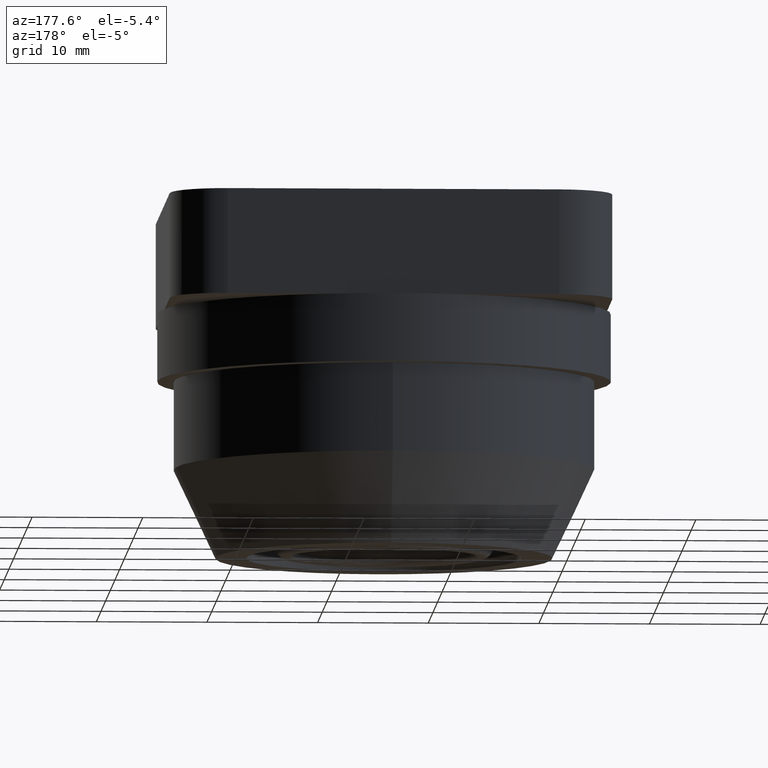
[diagram: clean part render]
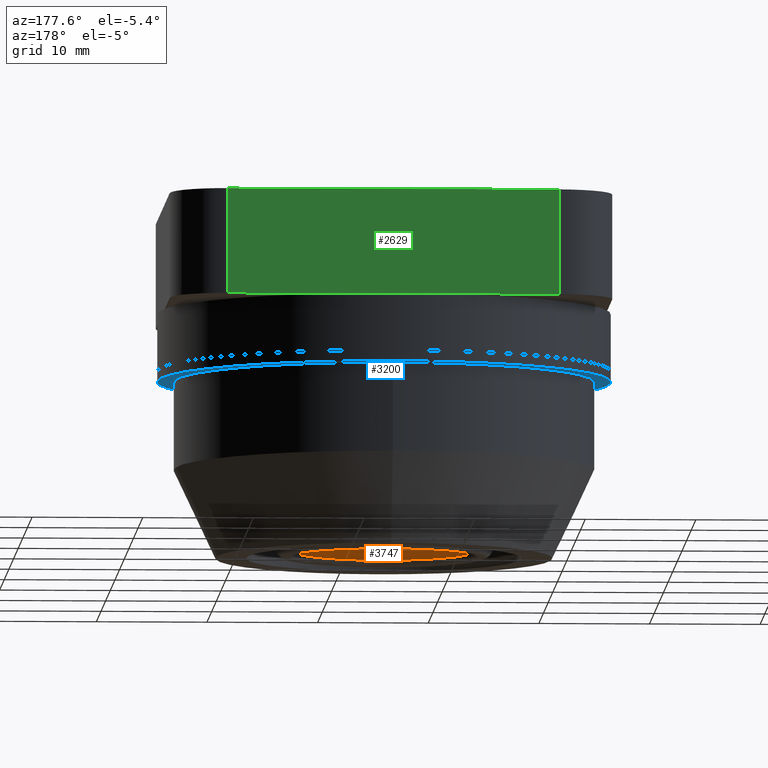
[diagram: same view with three faces highlighted in distinct colors, each labeled with its STEP entity id]
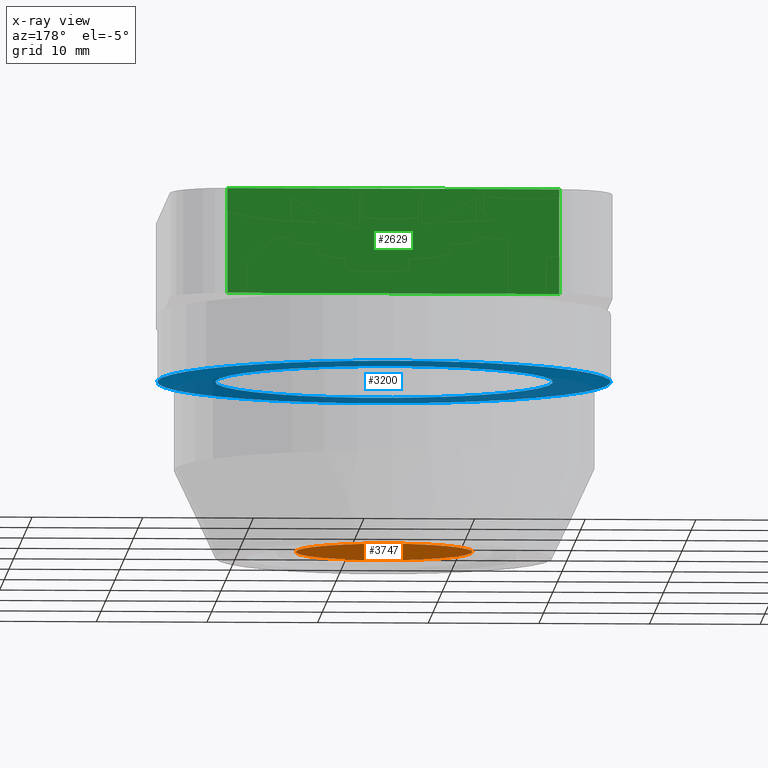
[diagram: x-ray of the same camera — body ghosted, the three highlighted faces saturated]
A machine part, auxiliary view with three faces highlighted in distinct colors.
The next image is the same camera in x-ray (body ghosted, the three faces saturated) — at least one of them is partly hidden behind the body in this view.
Their STEP definitions:

[orange] entity #3747 — the highlighted planar face has unit normal (0, 0, -1).
#3731=CARTESIAN_POINT('',(-21.807249580362004,14.879308421588465,0.0));
#3732=DIRECTION('',(-1.0,0.0,0.0));
#3733=DIRECTION('',(0.0,0.0,1.0));
#3734=AXIS2_PLACEMENT_3D('',#3731,#3732,#3733);
#3735=PLANE('',#3734);
#3736=CARTESIAN_POINT('',(-21.807249580362004,18.879308421588469,0.0));
#3737=VERTEX_POINT('',#3736);
#3738=CARTESIAN_POINT('',(-21.807249580362004,10.879308421588467,0.0));
#3739=DIRECTION('',(1.0,0.0,0.0));
#3740=DIRECTION('',(0.0,1.0,0.0));
#3741=AXIS2_PLACEMENT_3D('',#3738,#3739,#3740);
#3742=CIRCLE('',#3741,8.0);
#3743=EDGE_CURVE('',#3737,#3737,#3742,.T.);
#3744=ORIENTED_EDGE('',*,*,#3743,.F.);
#3745=EDGE_LOOP('',(#3744));
#3746=FACE_OUTER_BOUND('',#3745,.T.);
#3747=ADVANCED_FACE('',(#3746),#3735,.T.);

[blue] entity #3200 — the highlighted planar face has unit normal (0, 0, 1).
#3138=CARTESIAN_POINT('',(11.682818126876914,-0.326991688852490,1.0));
#3139=VERTEX_POINT('',#3138);
#3140=CARTESIAN_POINT('',(-3.567181873123087,-0.326991688852492,1.0));
#3141=DIRECTION('',(0.0,0.0,-1.0));
#3142=DIRECTION('',(-1.0,0.0,0.0));
#3143=AXIS2_PLACEMENT_3D('',#3140,#3141,#3142);
#3144=CIRCLE('',#3143,15.250000000000002);
#3145=EDGE_CURVE('',#3139,#3139,#3144,.T.);
#3166=CARTESIAN_POINT('',(16.932818126876917,-0.326991688852490,1.0));
#3167=VERTEX_POINT('',#3166);
#3168=CARTESIAN_POINT('',(-3.567181873123087,-0.326991688852492,1.0));
#3169=DIRECTION('',(0.0,0.0,-1.0));
#3170=DIRECTION('',(-1.0,0.0,0.0));
#3171=AXIS2_PLACEMENT_3D('',#3168,#3169,#3170);
#3172=CIRCLE('',#3171,20.500000000000004);
#3173=EDGE_CURVE('',#3167,#3167,#3172,.T.);
#3189=CARTESIAN_POINT('',(-3.567181873123087,-0.326991688852492,1.0));
#3190=DIRECTION('',(0.0,0.0,-1.0));
#3191=DIRECTION('',(-1.0,0.0,0.0));
#3192=AXIS2_PLACEMENT_3D('',#3189,#3190,#3191);
#3193=PLANE('',#3192);
#3194=ORIENTED_EDGE('',*,*,#3173,.F.);
#3195=EDGE_LOOP('',(#3194));
#3196=FACE_OUTER_BOUND('',#3195,.T.);
#3197=ORIENTED_EDGE('',*,*,#3145,.T.);
#3198=EDGE_LOOP('',(#3197));
#3199=FACE_BOUND('',#3198,.T.);
#3200=ADVANCED_FACE('',(#3196,#3199),#3193,.F.);

[green] entity #2629 — the highlighted planar face has unit normal (0, 1, 0).
#413=CARTESIAN_POINT('',(-18.853483861351101,11.286480461941252,9.500000000000000));
#414=VERTEX_POINT('',#413);
#415=CARTESIAN_POINT('',(11.146516138648895,11.286480461941252,9.500000000000000));
#416=VERTEX_POINT('',#415);
#417=CARTESIAN_POINT('',(-18.853483861351101,11.286480461941252,9.500000000000000));
#418=DIRECTION('',(1.0,0.0,0.0));
#419=VECTOR('',#418,29.999999999999996);
#420=LINE('',#417,#419);
#421=EDGE_CURVE('',#414,#416,#420,.T.);
#2599=CARTESIAN_POINT('',(-18.853483861351101,11.286480461941252,0.0));
#2600=DIRECTION('',(0.0,1.0,0.0));
#2601=DIRECTION('',(0.0,0.0,1.0));
#2602=AXIS2_PLACEMENT_3D('',#2599,#2600,#2601);
#2603=PLANE('',#2602);
#2604=ORIENTED_EDGE('',*,*,#421,.T.);
#2605=CARTESIAN_POINT('',(11.146516138648895,11.286480461941252,0.0));
#2606=VERTEX_POINT('',#2605);
#2607=CARTESIAN_POINT('',(11.146516138648895,11.286480461941252,0.0));
#2608=DIRECTION('',(0.0,0.0,1.0));
#2609=VECTOR('',#2608,9.500000000000000);
#2610=LINE('',#2607,#2609);
#2611=EDGE_CURVE('',#2606,#416,#2610,.T.);
#2612=ORIENTED_EDGE('',*,*,#2611,.F.);
#2613=CARTESIAN_POINT('',(-18.853483861351101,11.286480461941252,0.0));
#2614=VERTEX_POINT('',#2613);
#2615=CARTESIAN_POINT('',(11.146516138648895,11.286480461941252,0.0));
#2616=DIRECTION('',(-1.0,0.0,0.0));
#2617=VECTOR('',#2616,29.999999999999996);
#2618=LINE('',#2615,#2617);
#2619=EDGE_CURVE('',#2606,#2614,#2618,.T.);
#2620=ORIENTED_EDGE('',*,*,#2619,.T.);
#2621=CARTESIAN_POINT('',(-18.853483861351101,11.286480461941252,0.0));
#2622=DIRECTION('',(0.0,0.0,1.0));
#2623=VECTOR('',#2622,9.500000000000000);
#2624=LINE('',#2621,#2623);
#2625=EDGE_CURVE('',#2614,#414,#2624,.T.);
#2626=ORIENTED_EDGE('',*,*,#2625,.T.);
#2627=EDGE_LOOP('',(#2604,#2612,#2620,#2626));
#2628=FACE_OUTER_BOUND('',#2627,.T.);
#2629=ADVANCED_FACE('',(#2628),#2603,.T.);